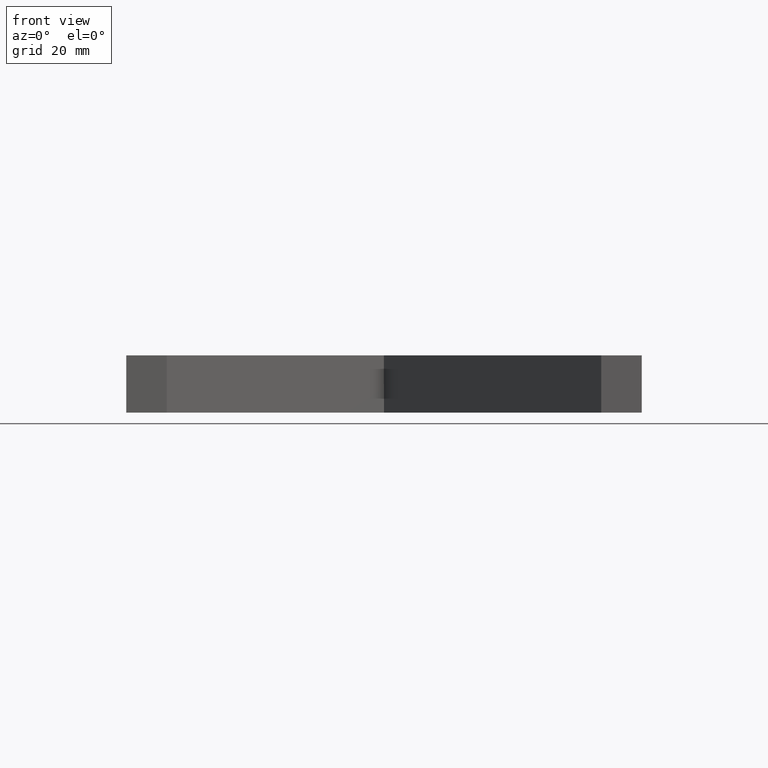
[diagram: clean part render]
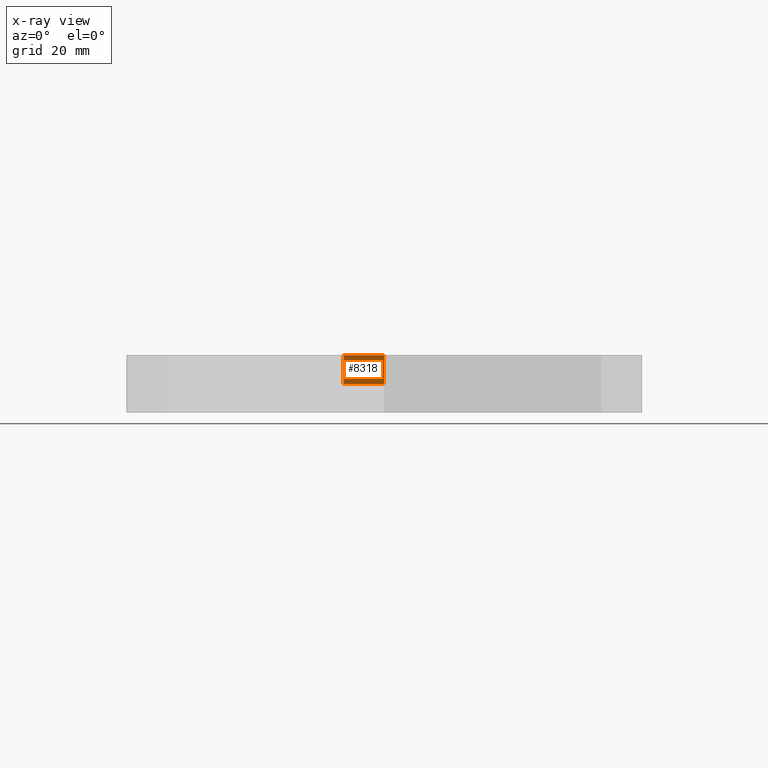
[diagram: x-ray — body ghosted, one internal face saturated and labeled with its STEP entity id]
A machine part, front view, then the same camera in x-ray: the body is ghosted and one INTERNAL B-rep face — a face not visible from any outside direction — is saturated and labeled: STEP entity #8318.
In plain terms, the highlighted planar face has unit normal (0.7071, 0.7071, 0).
Its self-contained STEP definition (entity closure, byte-faithful):
#479 = ORIENTED_EDGE ( 'NONE', *, *, #14606, .T. ) ;
#596 = VECTOR ( 'NONE', #5190, 1000.000000000000000 ) ;
#687 = EDGE_LOOP ( 'NONE', ( #5681, #2536, #5624, #479 ) ) ;
#1029 = DIRECTION ( 'NONE',  ( -0.7071067811865474617, 0.7071067811865474617, 0.000000000000000000 ) ) ;
#1494 = CARTESIAN_POINT ( 'NONE',  ( -8.449926035179245787, 0.03535533905932564114, 6.000000000000000000 ) ) ;
#1706 = DIRECTION ( 'NONE',  ( -0.7071067811865474617, 0.7071067811865474617, 0.000000000000000000 ) ) ;
#1877 = EDGE_CURVE ( 'NONE', #14610, #5084, #3215, .T. ) ;
#2221 = CARTESIAN_POINT ( 'NONE',  ( -8.449926035179245787, 0.03535533905932564114, 12.00000000000000000 ) ) ;
#2403 = CARTESIAN_POINT ( 'NONE',  ( 0.03535533905931002863, -8.449926035179231576, 6.000000000000000000 ) ) ;
#2536 = ORIENTED_EDGE ( 'NONE', *, *, #1877, .F. ) ;
#2839 = EDGE_CURVE ( 'NONE', #6317, #14610, #7278, .T. ) ;
#3215 = LINE ( 'NONE', #1494, #6773 ) ;
#3976 = LINE ( 'NONE', #6456, #596 ) ;
#4993 = CARTESIAN_POINT ( 'NONE',  ( -8.449926035179245787, 0.03535533905932564114, 6.000000000000000000 ) ) ;
#5084 = VERTEX_POINT ( 'NONE', #2221 ) ;
#5190 = DIRECTION ( 'NONE',  ( -0.000000000000000000, -0.000000000000000000, 1.000000000000000000 ) ) ;
#5624 = ORIENTED_EDGE ( 'NONE', *, *, #2839, .F. ) ;
#5652 = CARTESIAN_POINT ( 'NONE',  ( 0.03535533905931002863, -8.449926035179231576, 12.00000000000000000 ) ) ;
#5681 = ORIENTED_EDGE ( 'NONE', *, *, #7909, .T. ) ;
#6317 = VERTEX_POINT ( 'NONE', #2403 ) ;
#6455 = CARTESIAN_POINT ( 'NONE',  ( 0.03535533905931002863, -8.449926035179231576, 6.000000000000000000 ) ) ;
#6456 = CARTESIAN_POINT ( 'NONE',  ( 0.03535533905931002863, -8.449926035179231576, 6.000000000000000000 ) ) ;
#6773 = VECTOR ( 'NONE', #13905, 1000.000000000000000 ) ;
#7085 = VERTEX_POINT ( 'NONE', #7583 ) ;
#7278 = LINE ( 'NONE', #7805, #14368 ) ;
#7583 = CARTESIAN_POINT ( 'NONE',  ( 0.03535533905931007720, -8.449926035179228023, 12.00000000000000000 ) ) ;
#7805 = CARTESIAN_POINT ( 'NONE',  ( 0.03535533905931002863, -8.449926035179231576, 6.000000000000000000 ) ) ;
#7909 = EDGE_CURVE ( 'NONE', #7085, #5084, #10585, .T. ) ;
#8073 = AXIS2_PLACEMENT_3D ( 'NONE', #6455, #8506, #1706 ) ;
#8318 = ADVANCED_FACE ( 'NONE', ( #8624 ), #13223, .F. ) ;
#8506 = DIRECTION ( 'NONE',  ( 0.7071067811865475727, 0.7071067811865475727, 0.000000000000000000 ) ) ;
#8624 = FACE_OUTER_BOUND ( 'NONE', #687, .T. ) ;
#10585 = LINE ( 'NONE', #5652, #11807 ) ;
#11807 = VECTOR ( 'NONE', #1029, 1000.000000000000114 ) ;
#12367 = DIRECTION ( 'NONE',  ( -0.7071067811865474617, 0.7071067811865474617, 0.000000000000000000 ) ) ;
#13223 = PLANE ( 'NONE',  #8073 ) ;
#13905 = DIRECTION ( 'NONE',  ( -0.000000000000000000, -0.000000000000000000, 1.000000000000000000 ) ) ;
#14368 = VECTOR ( 'NONE', #12367, 1000.000000000000114 ) ;
#14606 = EDGE_CURVE ( 'NONE', #6317, #7085, #3976, .T. ) ;
#14610 = VERTEX_POINT ( 'NONE', #4993 ) ;